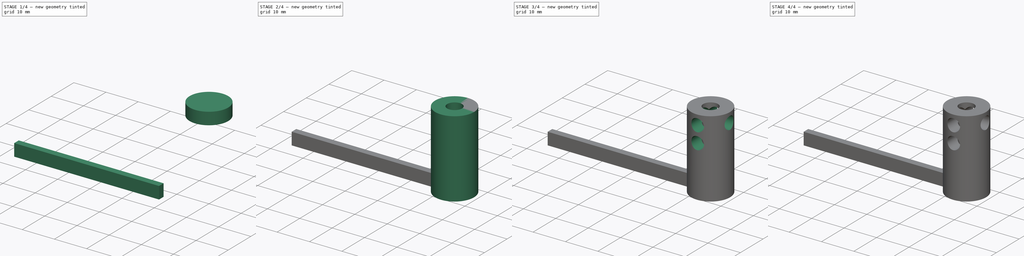
[diagram: build sequence overview — one tinted view per stage of 4, left to right]
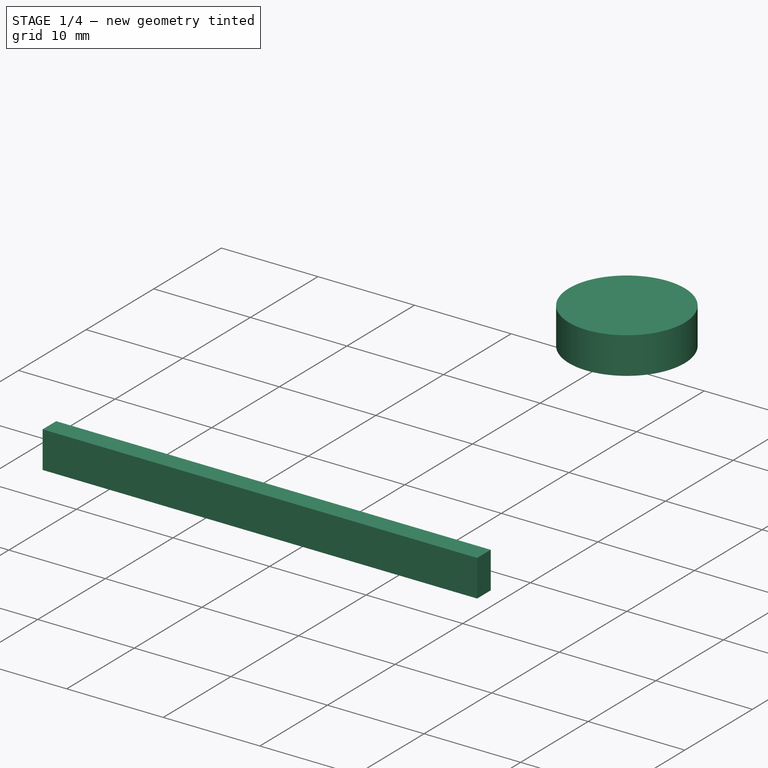
[diagram: stage 1 of 4 — iso view after this stage's code; geometry added in this stage tinted green]
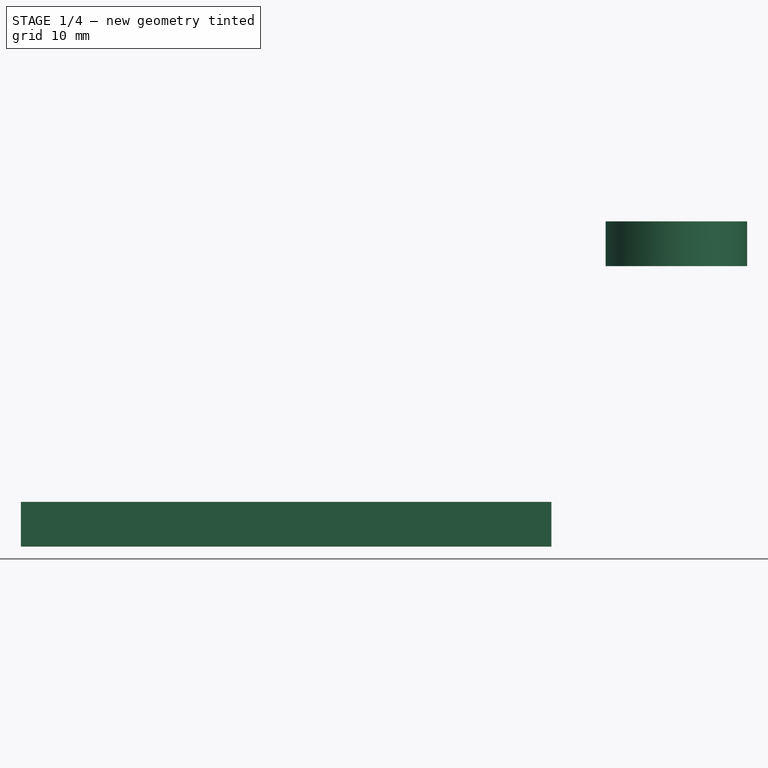
[diagram: stage 1 of 4 — front view after this stage's code; geometry added in this stage tinted green]
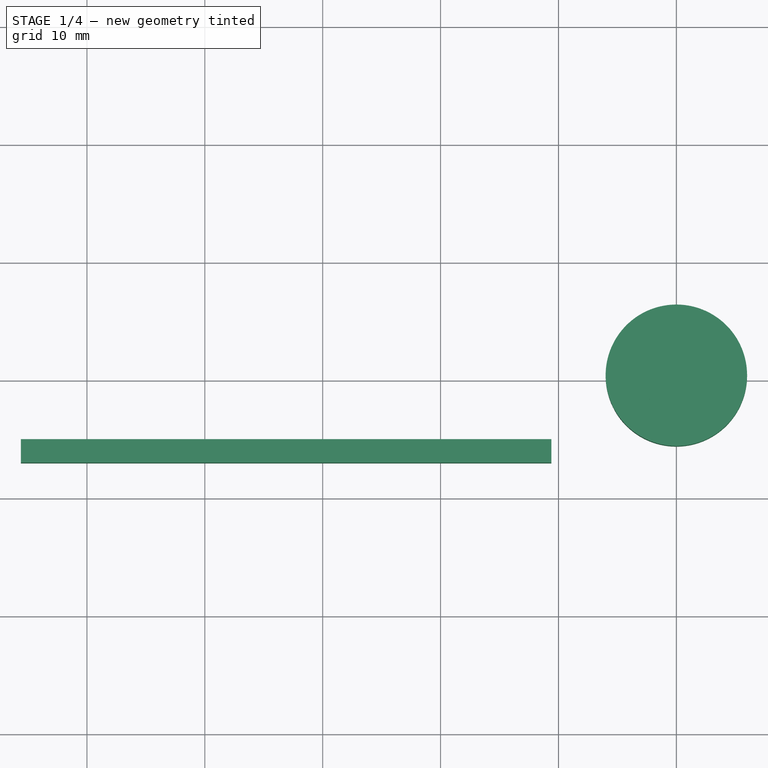
[diagram: stage 1 of 4 — top view after this stage's code; geometry added in this stage tinted green]
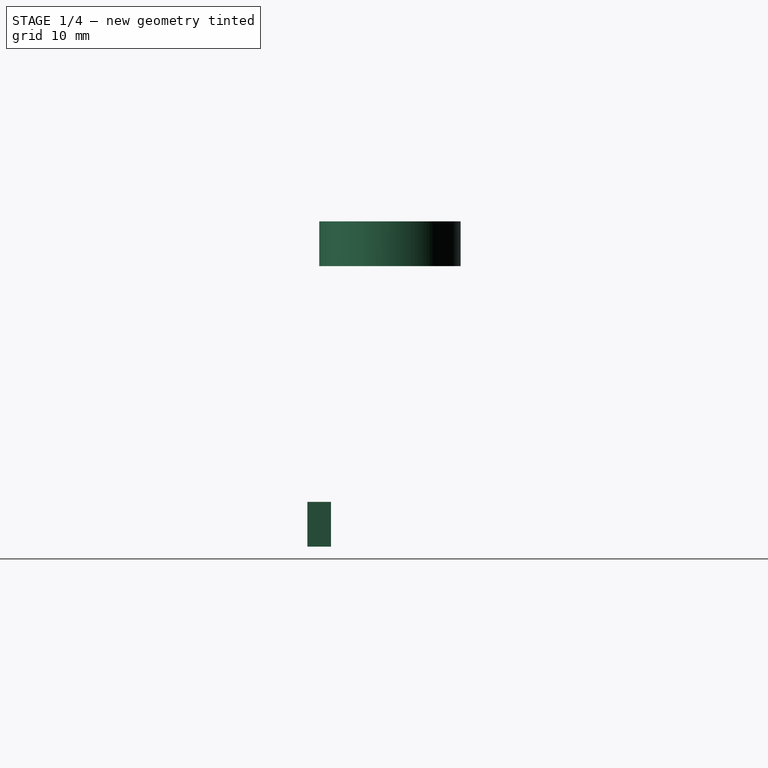
[diagram: stage 1 of 4 — right view after this stage's code; geometry added in this stage tinted green]
FCSTD DOCUMENT  (FreeCAD 0.18R16146 (Git))
Label: servo_cilinder
License: All rights reserved
LicenseURL: http://en.wikipedia.org/wiki/All_rights_reserved
objects: Sketcher::SketchObject×5, PartDesign::Pocket×4, Part::MultiFuse×2, Part::Part2DObjectPython×1, Part::Extrusion×1, PartDesign::Pad×1, PartDesign::Body×1, Part::Cylinder×1, Part::FeaturePython×1, Part::Box×1
note: 23 computed .brp shape members not serialized (recipe doc carries the construction recipe); baked Part::Feature solids carry a one-line shape summary decoded from their .brp

FEATURE [Part::Part2DObjectPython] InvoluteGear002  # Draft 2D object (typed FeaturePython)
  ExternalGear = true
  HighPrecision = true
  Modules = 0.257
  NumberOfTeeth = 25
  PressureAngle = 36
FEATURE [Part::Extrusion] Extrude002
  Base = -> InvoluteGear002
  Dir = (0,0,1)
  DirMode = 2
  FaceMakerClass = Part::FaceMakerBullseye
  LengthFwd = 3.8
  LengthRev = 0
  Solid = true
  Symmetric = false
FEATURE [PartDesign::Body] Body
  Group = -> [Sketch,Sketch001,Pad,Sketch002,Pocket,Pocket001,Sketch003,Pocket002,Sketch004,Pocket003]
  Origin = -> Origin
  Tip = -> Pocket003
FEATURE [Part::Cylinder] Cylinder
  Angle = 360
  AttacherType = Attacher::AttachEngine3D
  Height = 3.8
  Radius = 6
FEATURE [Part::Box] Box  label="Cube"
  AttacherType = Attacher::AttachEngine3D
  Height = 3.8
  Length = 45
  Placement = pos=(-55.6,-7,-23.8) rot=(0,0,1;0rad)
  Width = 2
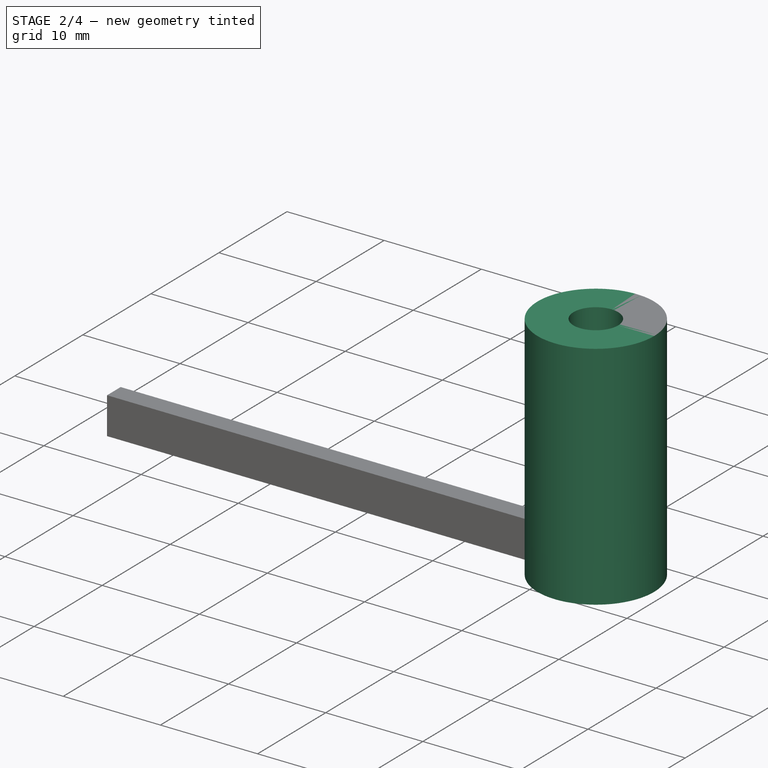
[diagram: stage 2 of 4 — iso view after this stage's code; geometry added in this stage tinted green]
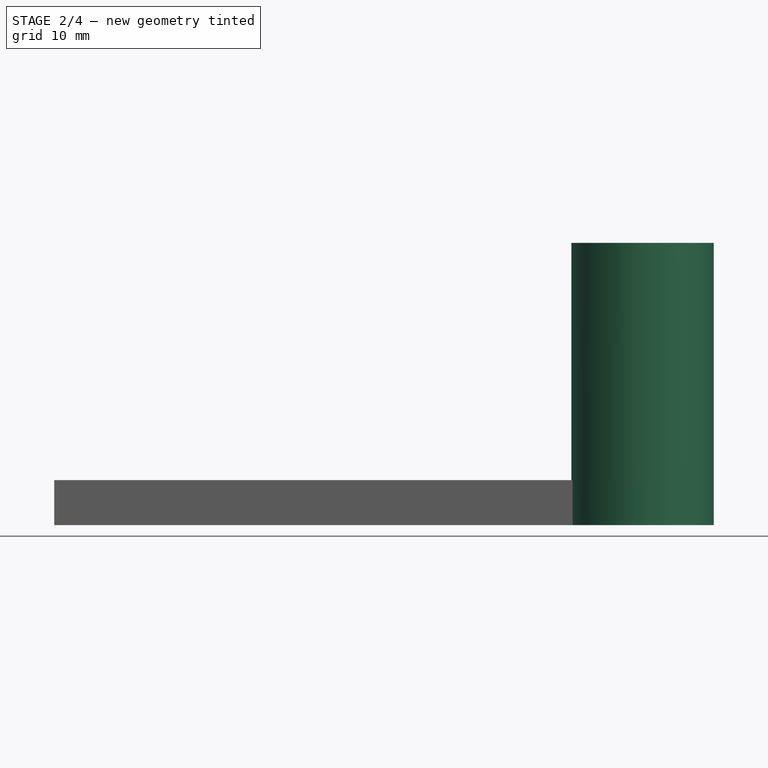
[diagram: stage 2 of 4 — front view after this stage's code; geometry added in this stage tinted green]
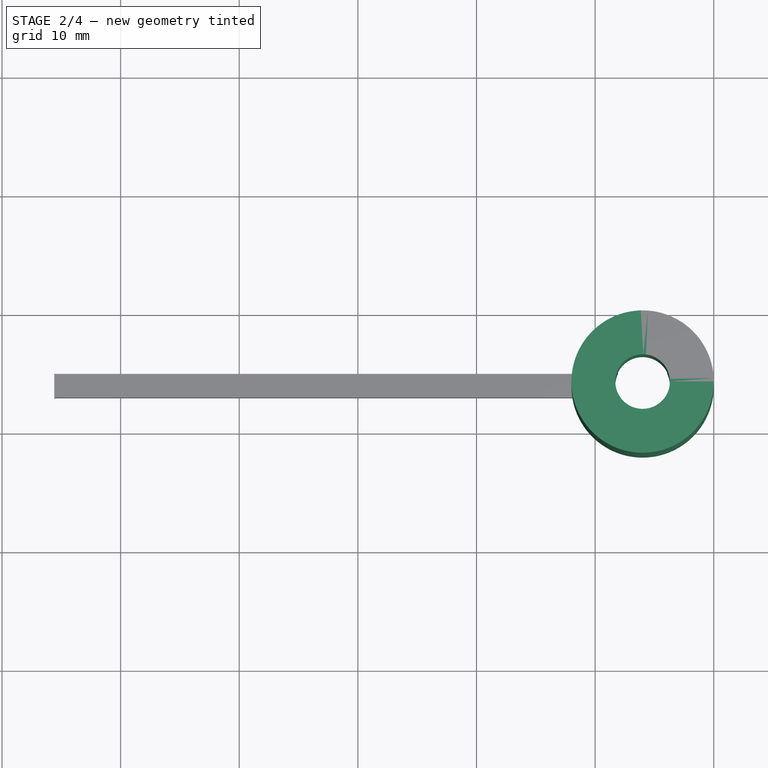
[diagram: stage 2 of 4 — top view after this stage's code; geometry added in this stage tinted green]
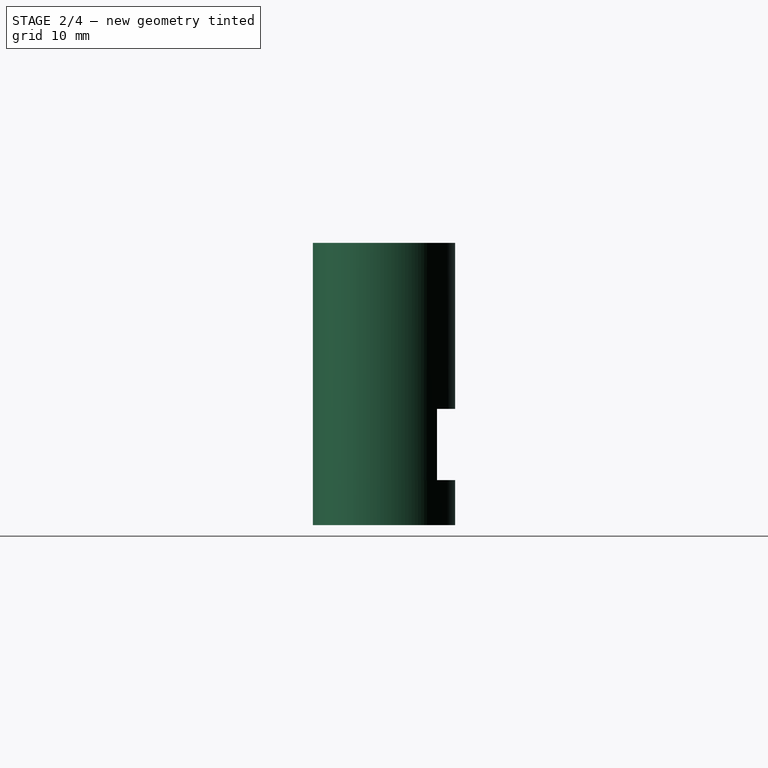
[diagram: stage 2 of 4 — right view after this stage's code; geometry added in this stage tinted green]
FEATURE [Sketcher::SketchObject] Sketch
  MapMode = 5
  Placement = pos=(0,0,0) rot=(1,0,0;1.5708rad)
  Support = -> [XZ_Plane]
  sketch-geometry (6):
    g0: Circle CenterX=-6 CenterY=-8 CenterZ=0 NormalX=0 NormalY=0 NormalZ=1 AngleXU=0 Radius=1.95
    g1: LineSegment [constr] StartX=-6 StartY=-8 StartZ=0 EndX=-11 EndY=-8 EndZ=0
    g2: LineSegment [constr] StartX=-6 StartY=-8 StartZ=0 EndX=-6 EndY=-20 EndZ=0
    g3: Circle CenterX=-6 CenterY=-3 CenterZ=0 NormalX=0 NormalY=0 NormalZ=1 AngleXU=0 Radius=1.95
    g4: LineSegment [constr] StartX=-6 StartY=-8 StartZ=0 EndX=-6 EndY=-3 EndZ=0
    g5: LineSegment [constr] StartX=-6 StartY=-3 StartZ=0 EndX=-6 EndY=0 EndZ=0
  constraints (17):
    c: Radius(g0) = 1.95
    c: Coincident(g1,g0)
    c: Horizontal(g1)
    c: DistanceX(g1,g1) = 5
    c: Coincident(g2,g0)
    c: Vertical(g2)
    c: DistanceY(g2,g2) = 12
    c: Radius(g3) = 1.95
    c: Coincident(g4,g0)
    c: Coincident(g4,g3)
    c: Vertical(g4)
    c: DistanceY(g4,g4) = 5
    c: Coincident(g5,g3)
    c: PointOnObject(g5,g-1)
    c: Vertical(g5)
    c: DistanceY(g5,g5) = 3
    c: DistanceX(g5,g-1) = 6
FEATURE [Sketcher::SketchObject] Sketch001
  MapMode = 5
  Support = -> [XY_Plane]
  sketch-geometry (3):
    g0: Circle CenterX=-6 CenterY=-6 CenterZ=0 NormalX=0 NormalY=0 NormalZ=1 AngleXU=0 Radius=6
    g1: Circle CenterX=-6 CenterY=-6 CenterZ=0 NormalX=0 NormalY=0 NormalZ=1 AngleXU=0 Radius=2.3
    g2: LineSegment [constr] StartX=-6 StartY=-6 StartZ=0 EndX=0 EndY=-6 EndZ=0
  constraints (8):
    c: Tangent(g0,g-1)
    c: Radius(g0) = 6
    c: Coincident(g1,g0)
    c: Radius(g1) = 2.3
    c: Coincident(g2,g0)
    c: PointOnObject(g2,g-2)
    c: Horizontal(g2)
    c: DistanceX(g2,g2) = 6
FEATURE [PartDesign::Pad] Pad
  Length = 20
  Length2 = 100
  Profile = -> Sketch001
  Reversed = true
  Type = 0
FEATURE [Sketcher::SketchObject] Sketch002
  MapMode = 5
  Placement = pos=(0,0,0) rot=(1,0,0;1.5708rad)
  Support = -> [XZ_Plane]
  sketch-geometry (7):
    g0: LineSegment StartX=-2 StartY=-20 StartZ=0 EndX=-10 EndY=-20 EndZ=0
    g1: LineSegment StartX=-10 StartY=-20 StartZ=0 EndX=-10 EndY=-14 EndZ=0
    g2: LineSegment StartX=-10 StartY=-14 StartZ=0 EndX=-2 EndY=-14 EndZ=0
    g3: LineSegment StartX=-2 StartY=-14 StartZ=0 EndX=-2 EndY=-20 EndZ=0
    g4: LineSegment [constr] StartX=-2 StartY=-14 StartZ=0 EndX=0 EndY=-14 EndZ=0
    g5: LineSegment [constr] StartX=-2 StartY=-20 StartZ=0 EndX=0 EndY=-20 EndZ=0
    g6: LineSegment [constr] StartX=-2 StartY=-14 StartZ=0 EndX=-2 EndY=0 EndZ=0
  constraints (21):
    c: Coincident(g0,g1)
    c: Coincident(g1,g2)
    c: Coincident(g2,g3)
    c: Coincident(g3,g0)
    c: Horizontal(g0)
    c: Vertical(g1)
    c: Vertical(g3)
    c: DistanceY(g3,g3) = 6
    c: DistanceX(g2,g2) = 8
    c: Coincident(g4,g2)
    c: PointOnObject(g4,g-2)
    c: Horizontal(g4)
    c: DistanceX(g4,g4) = 2
    c: Equal(g3,g1)
    c: Coincident(g5,g0)
    c: Horizontal(g5)
    c: Equal(g5,g4)
    c: Coincident(g6,g2)
    c: PointOnObject(g6,g-1)
    c: Vertical(g6)
    c: DistanceY(g6,g6) = 14
FEATURE [PartDesign::Pocket] Pocket
  BaseFeature = -> Pad
  Length = 5
  Length2 = 100
  Profile = -> Sketch002
  Reversed = true
  Type = 0
FEATURE [Part::FeaturePython] Cutout  # WARN: FeaturePython — macro-defined, semantics opaque (R4)
  Base = -> Cylinder
  Placement = pos=(-6,-6,-23.8) rot=(0,0,1;0rad)
  Tolerance = 0
  Tool = -> Extrude002
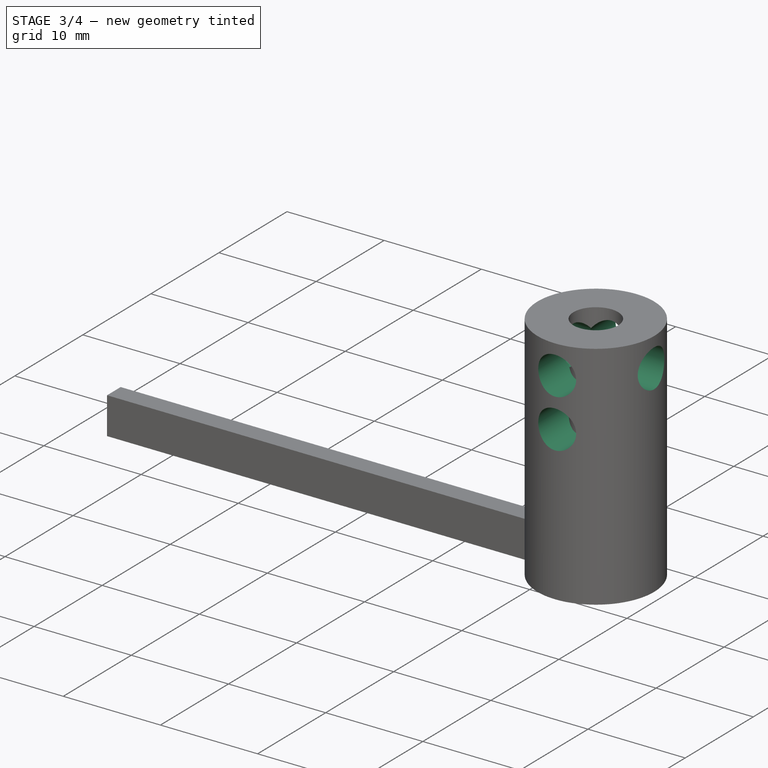
[diagram: stage 3 of 4 — iso view after this stage's code; geometry added in this stage tinted green]
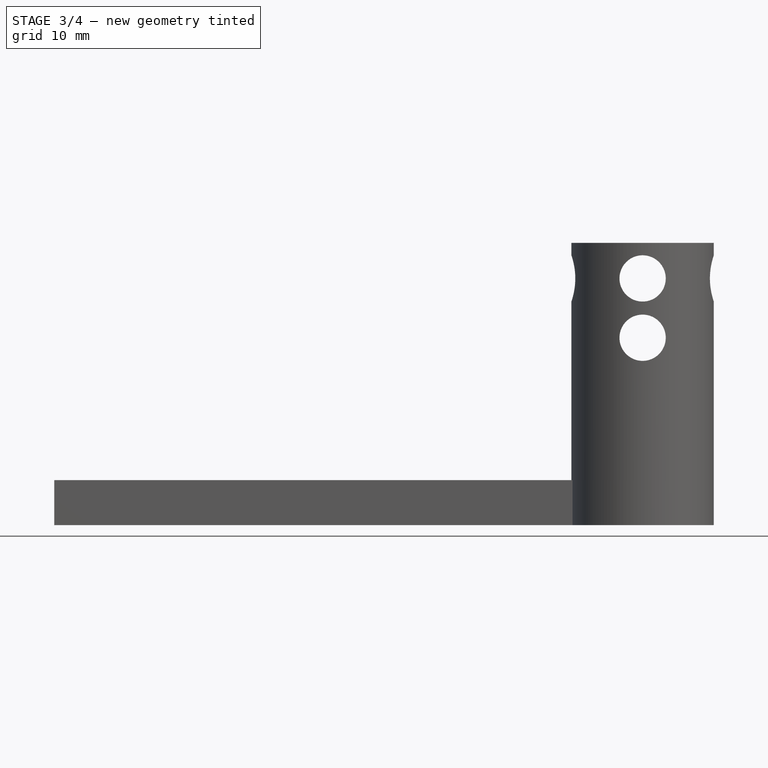
[diagram: stage 3 of 4 — front view after this stage's code; geometry added in this stage tinted green]
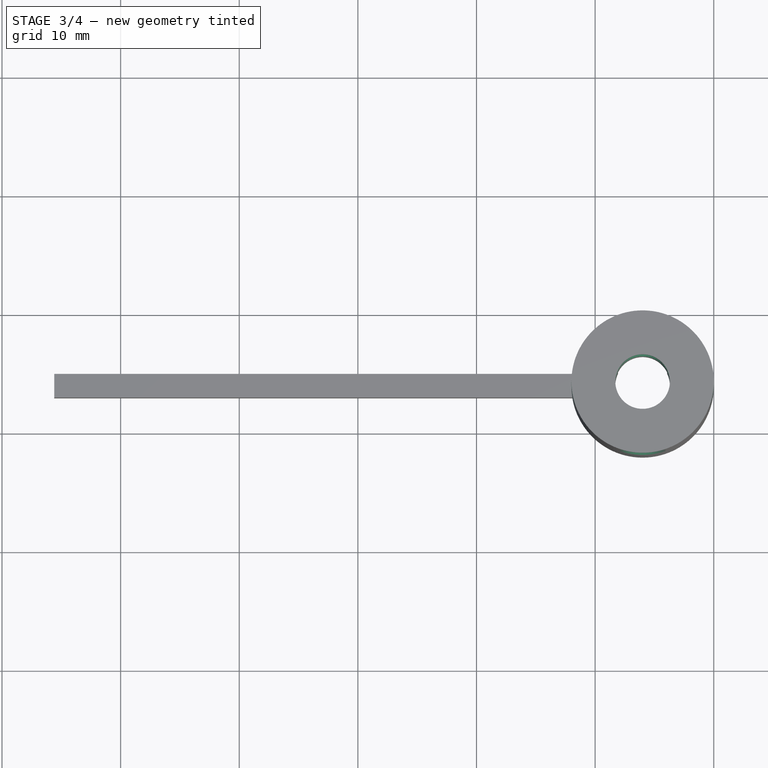
[diagram: stage 3 of 4 — top view after this stage's code; geometry added in this stage tinted green]
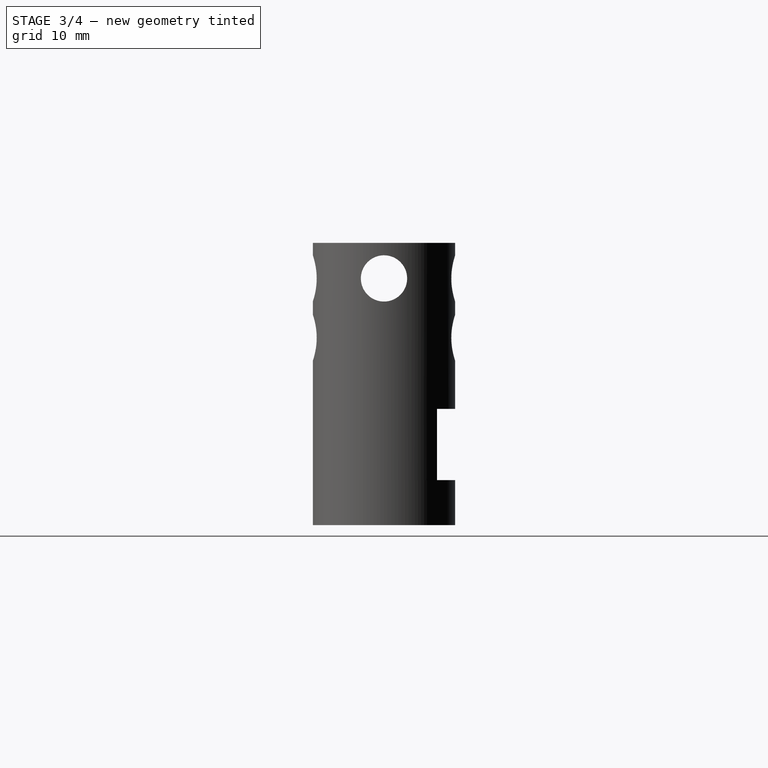
[diagram: stage 3 of 4 — right view after this stage's code; geometry added in this stage tinted green]
FEATURE [PartDesign::Pocket] Pocket001
  BaseFeature = -> Pocket
  Length = 5
  Length2 = 100
  Profile = -> Sketch
  Reversed = true
  Type = 1
FEATURE [Sketcher::SketchObject] Sketch003
  MapMode = 5
  Placement = pos=(0,0,0) rot=(0.57735,0.57735,0.57735;2.0944rad)
  Support = -> [YZ_Plane]
  sketch-geometry (2):
    g0: Circle CenterX=-6 CenterY=-3 CenterZ=0 NormalX=0 NormalY=0 NormalZ=1 AngleXU=0 Radius=1.95
    g1: LineSegment [constr] StartX=-6 StartY=-3 StartZ=0 EndX=-6 EndY=0 EndZ=0
  constraints (6):
    c: Radius(g0) = 1.95
    c: Coincident(g1,g0)
    c: PointOnObject(g1,g-1)
    c: Vertical(g1)
    c: DistanceY(g1,g1) = 3
    c: DistanceX(g1,g-1) = 6
FEATURE [PartDesign::Pocket] Pocket002
  BaseFeature = -> Pocket001
  Length = 5
  Length2 = 100
  Profile = -> Sketch003
  Type = 1
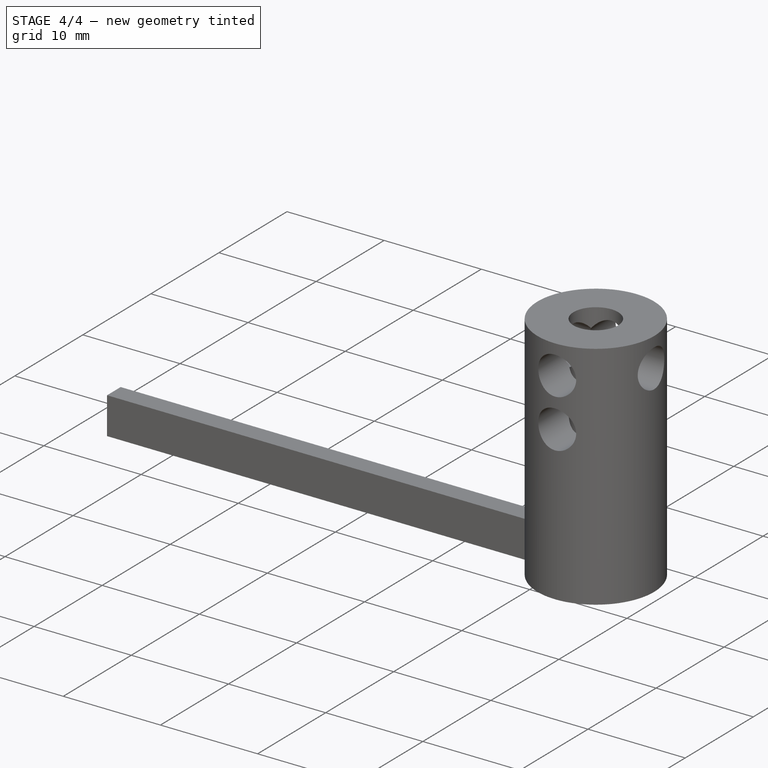
[diagram: stage 4 of 4 — iso view after this stage's code; geometry added in this stage tinted green]
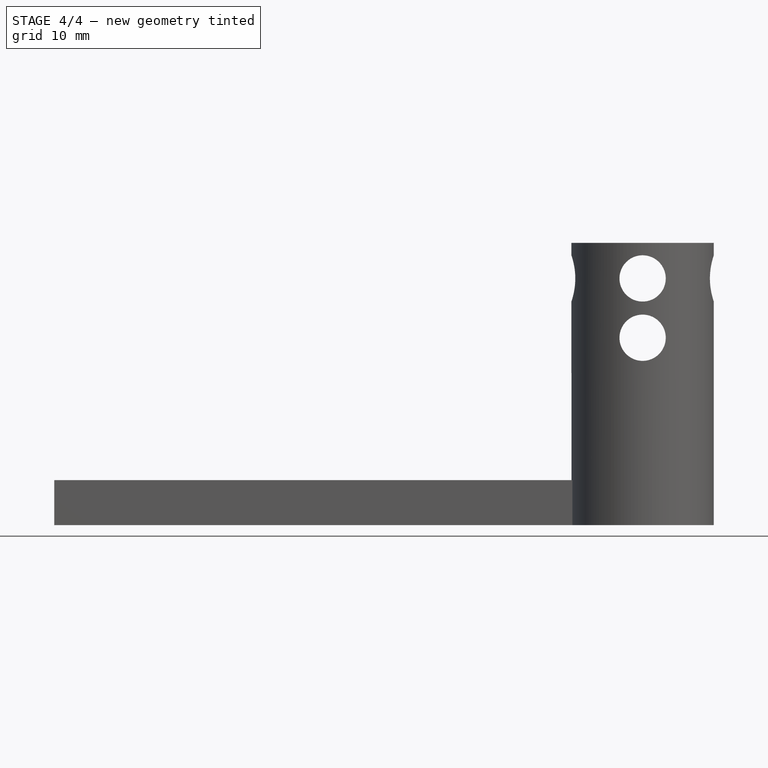
[diagram: stage 4 of 4 — front view after this stage's code; geometry added in this stage tinted green]
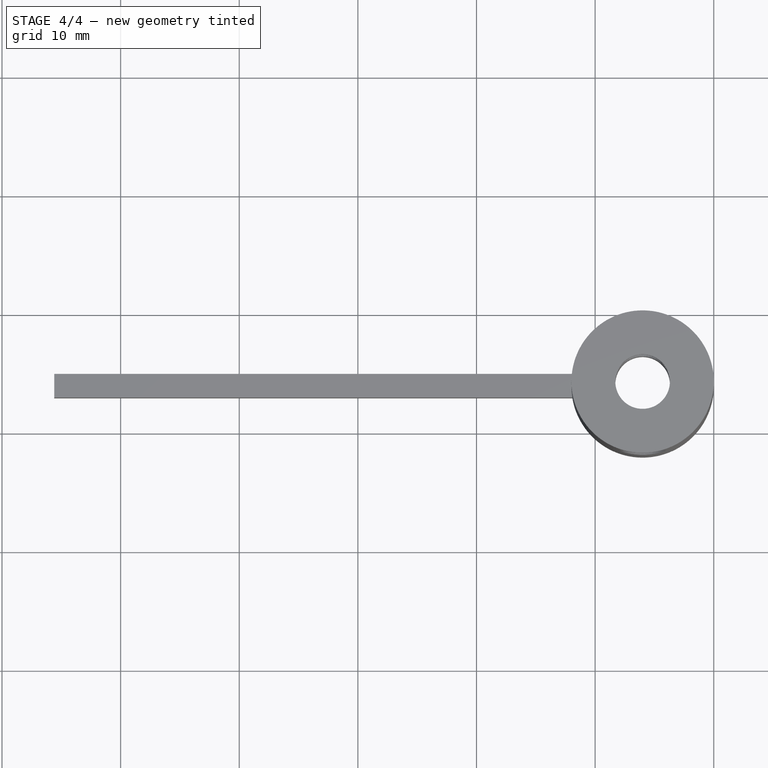
[diagram: stage 4 of 4 — top view after this stage's code; geometry added in this stage tinted green]
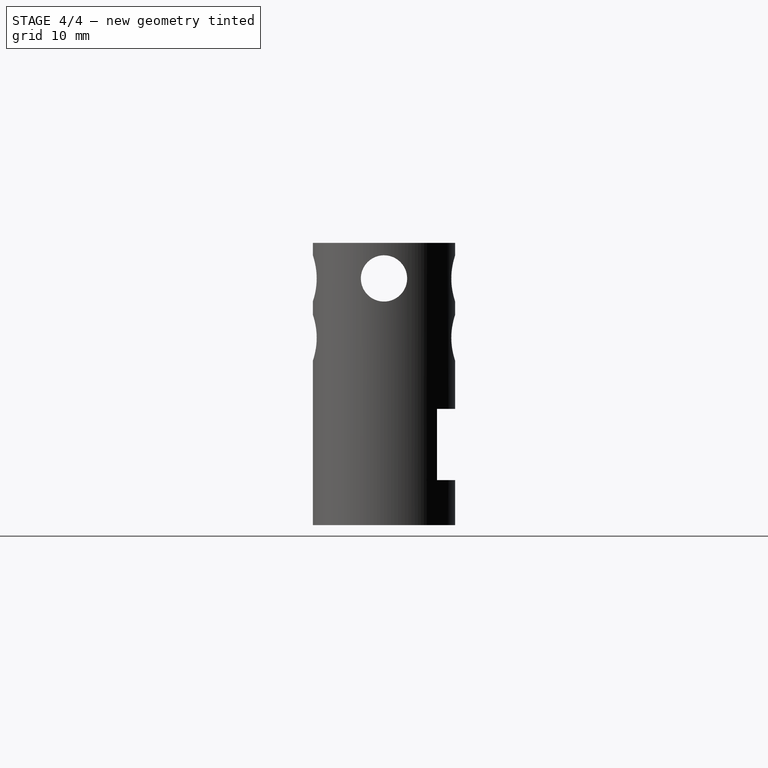
[diagram: stage 4 of 4 — right view after this stage's code; geometry added in this stage tinted green]
FEATURE [Sketcher::SketchObject] Sketch004
  MapMode = 5
  Placement = pos=(0,3.1e-15,-14) rot=(1,0,0;3.14159rad)
  Support = -> [Pocket002]
  sketch-geometry (3):
    g0: Circle CenterX=-6 CenterY=6 CenterZ=0 NormalX=0 NormalY=0 NormalZ=1 AngleXU=0 Radius=4.7
    g1: LineSegment [constr] StartX=-6 StartY=6 StartZ=0 EndX=-6 EndY=0 EndZ=0
    g2: LineSegment [constr] StartX=-6 StartY=6 StartZ=0 EndX=0 EndY=6 EndZ=0
  constraints (9):
    c: Radius(g0) = 4.7
    c: Coincident(g1,g0)
    c: PointOnObject(g1,g-1)
    c: Vertical(g1)
    c: Coincident(g2,g0)
    c: PointOnObject(g2,g-2)
    c: Horizontal(g2)
    c: DistanceX(g2,g2) = 6
    c: DistanceY(g1,g1) = -6
FEATURE [PartDesign::Pocket] Pocket003
  BaseFeature = -> Pocket002
  Length = 6
  Length2 = 100
  Profile = -> Sketch004
  Reversed = true
  Type = 0
FEATURE [Part::MultiFuse] Fusion  label="Cylinder001"
  Shapes = -> [Cutout,Body]
FEATURE [Part::MultiFuse] Fusion001  label="cilinder"
  Shapes = -> [Box,Fusion]
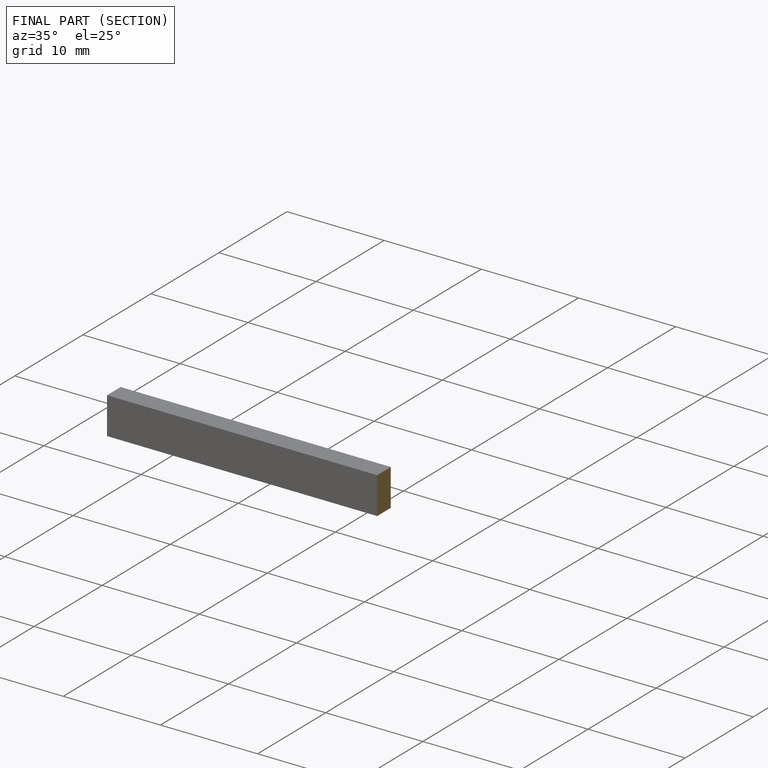
[diagram: finished part — half-section view (interior)]
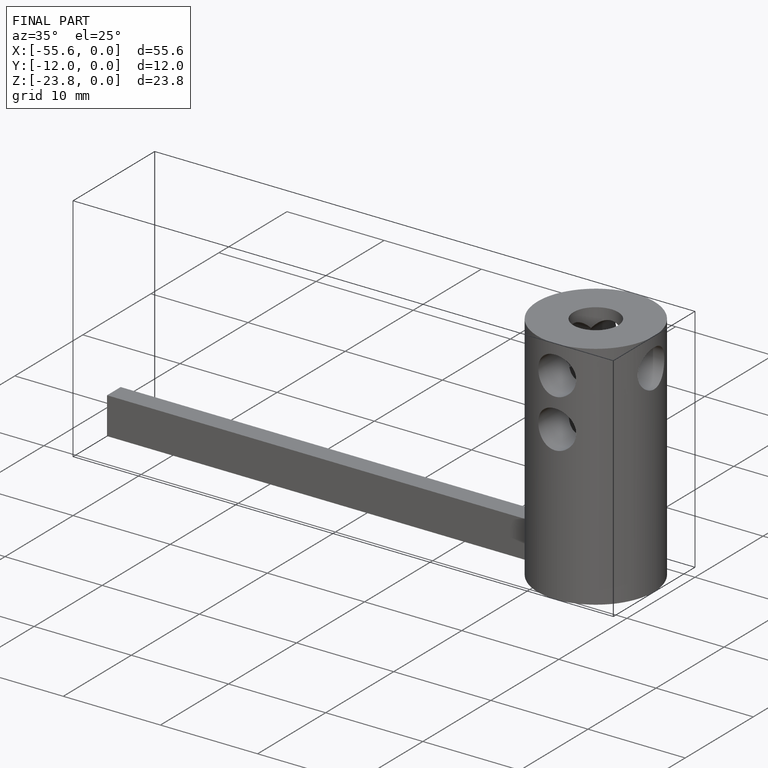
[diagram: finished part — iso view with bounding-box wireframe]
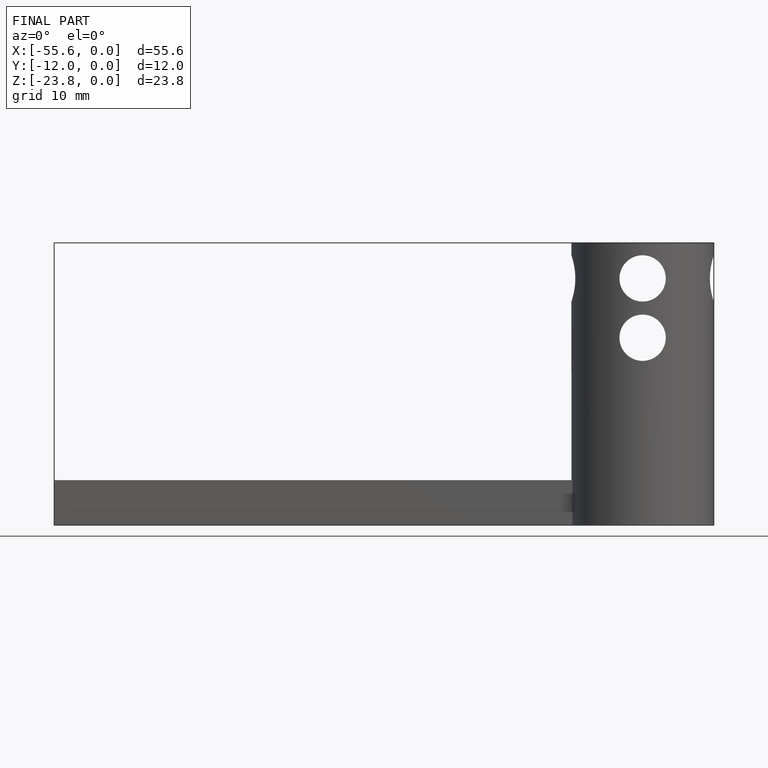
[diagram: finished part — front view with bounding-box wireframe]
